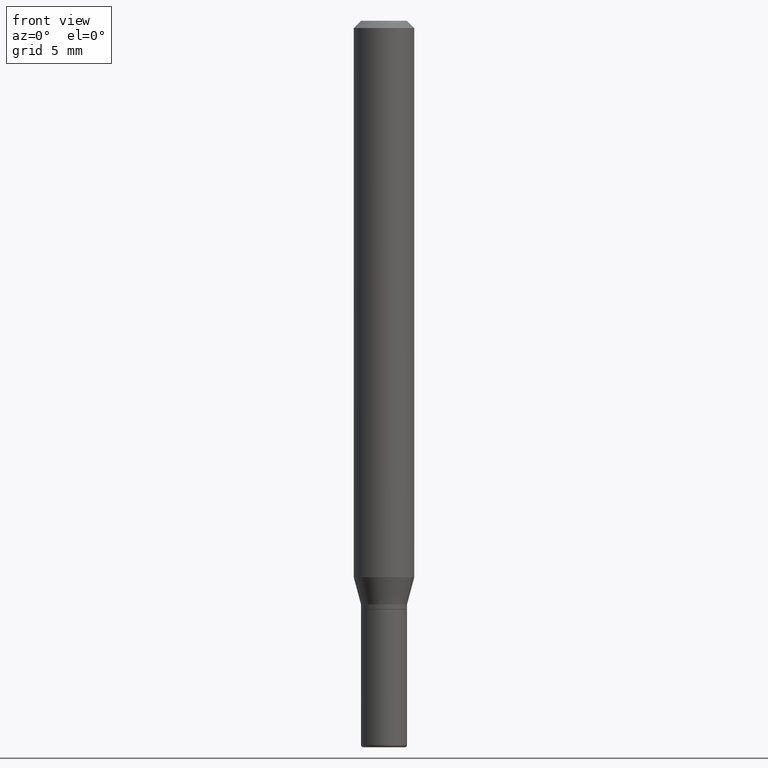
[diagram: clean part render]
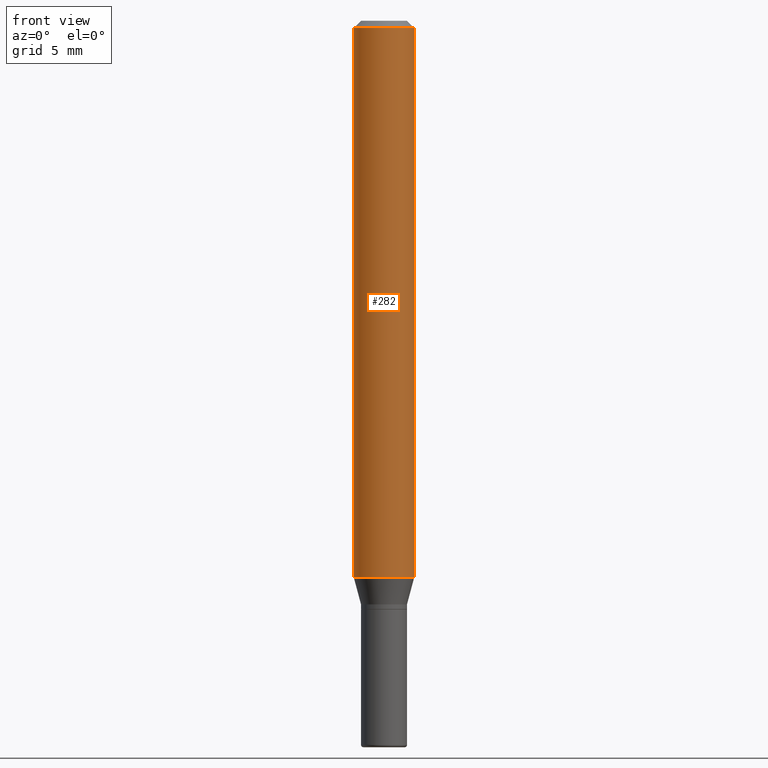
[diagram: same view with one face highlighted and labeled with its STEP entity id]
A machine part, front view. The second image highlights one B-rep face of the part: STEP entity #282.
In plain terms, the highlighted cylindrical surface (edge-blend (fillet) strip) has radius 1.5875 mm, axis along (-0, 0, 1).
Its self-contained STEP definition (entity closure, byte-faithful):
#7 = DIRECTION ( 'NONE',  ( -2.445468806185136597E-29, 3.491481338843145583E-15, 1.000000000000000000 ) ) ;
#14 = CYLINDRICAL_SURFACE ( 'NONE', #312, 0.06250000000000000000 ) ;
#29 = AXIS2_PLACEMENT_3D ( 'NONE', #240, #7, #88 ) ;
#32 = ORIENTED_EDGE ( 'NONE', *, *, #87, .T. ) ;
#35 = CARTESIAN_POINT ( 'NONE',  ( 0.06250000000000000000, -4.364351673553916694E-16, 3.047610484872459871E-30 ) ) ;
#40 = VERTEX_POINT ( 'NONE', #43 ) ;
#43 = CARTESIAN_POINT ( 'NONE',  ( -0.06250000000000000000, -1.587986513717445910E-15, -0.01499999999999970281 ) ) ;
#50 = ORIENTED_EDGE ( 'NONE', *, *, #250, .F. ) ;
#60 = CARTESIAN_POINT ( 'NONE',  ( 0.000000000000000000, 0.000000000000000000, 0.000000000000000000 ) ) ;
#86 = CARTESIAN_POINT ( 'NONE',  ( -0.06250000000000000000, -3.567690017202308146E-15, -1.149019237886466538 ) ) ;
#87 = EDGE_CURVE ( 'NONE', #182, #397, #280, .T. ) ;
#88 = DIRECTION ( 'NONE',  ( 1.000000000000000000, -6.982962677686266711E-15, 0.000000000000000000 ) ) ;
#98 = VERTEX_POINT ( 'NONE', #86 ) ;
#109 = LINE ( 'NONE', #290, #498 ) ;
#133 = ORIENTED_EDGE ( 'NONE', *, *, #138, .F. ) ;
#138 = EDGE_CURVE ( 'NONE', #40, #397, #291, .T. ) ;
#161 = CARTESIAN_POINT ( 'NONE',  ( 0.06250000000000000000, -4.448214394407762432E-15, -1.149019237886466538 ) ) ;
#173 = DIRECTION ( 'NONE',  ( -2.445468806185136597E-29, 3.491481338843145583E-15, 1.000000000000000000 ) ) ;
#182 = VERTEX_POINT ( 'NONE', #161 ) ;
#240 = CARTESIAN_POINT ( 'NONE',  ( 3.668203209277632395E-31, -5.237222008264614861E-17, -0.01499999999999970281 ) ) ;
#250 = EDGE_CURVE ( 'NONE', #98, #40, #109, .T. ) ;
#266 = EDGE_CURVE ( 'NONE', #98, #182, #454, .T. ) ;
#280 = LINE ( 'NONE', #35, #402 ) ;
#282 = ADVANCED_FACE ( 'NONE', ( #457 ), #14, .T. ) ;
#290 = CARTESIAN_POINT ( 'NONE',  ( -0.06250000000000000000, 4.440892098500626162E-16, -3.074334431409316114E-30 ) ) ;
#291 = CIRCLE ( 'NONE', #29, 0.06250000000000000000 ) ;
#300 = CARTESIAN_POINT ( 'NONE',  ( 2.809890703957972484E-29, -4.011779227052370762E-15, -1.149019237886466538 ) ) ;
#301 = AXIS2_PLACEMENT_3D ( 'NONE', #300, #173, #304 ) ;
#304 = DIRECTION ( 'NONE',  ( 1.000000000000000000, -6.982962677686270655E-15, 0.000000000000000000 ) ) ;
#310 = EDGE_LOOP ( 'NONE', ( #50, #492, #32, #133 ) ) ;
#312 = AXIS2_PLACEMENT_3D ( 'NONE', #60, #365, #334 ) ;
#334 = DIRECTION ( 'NONE',  ( 1.000000000000000000, -6.982962677686266711E-15, 4.876176775795935793E-29 ) ) ;
#363 = DIRECTION ( 'NONE',  ( -2.445468806185136877E-29, 3.491481338843145188E-15, 1.000000000000000000 ) ) ;
#365 = DIRECTION ( 'NONE',  ( -2.445468806185136597E-29, 3.491481338843145583E-15, 1.000000000000000000 ) ) ;
#397 = VERTEX_POINT ( 'NONE', #416 ) ;
#402 = VECTOR ( 'NONE', #432, 39.37007874015748143 ) ;
#416 = CARTESIAN_POINT ( 'NONE',  ( 0.06250000000000000000, -4.888073874380378612E-16, -0.01499999999999970281 ) ) ;
#432 = DIRECTION ( 'NONE',  ( -2.445468806185136877E-29, 3.491481338843145188E-15, 1.000000000000000000 ) ) ;
#454 = CIRCLE ( 'NONE', #301, 0.06250000000000000000 ) ;
#457 = FACE_OUTER_BOUND ( 'NONE', #310, .T. ) ;
#492 = ORIENTED_EDGE ( 'NONE', *, *, #266, .T. ) ;
#498 = VECTOR ( 'NONE', #363, 39.37007874015748143 ) ;